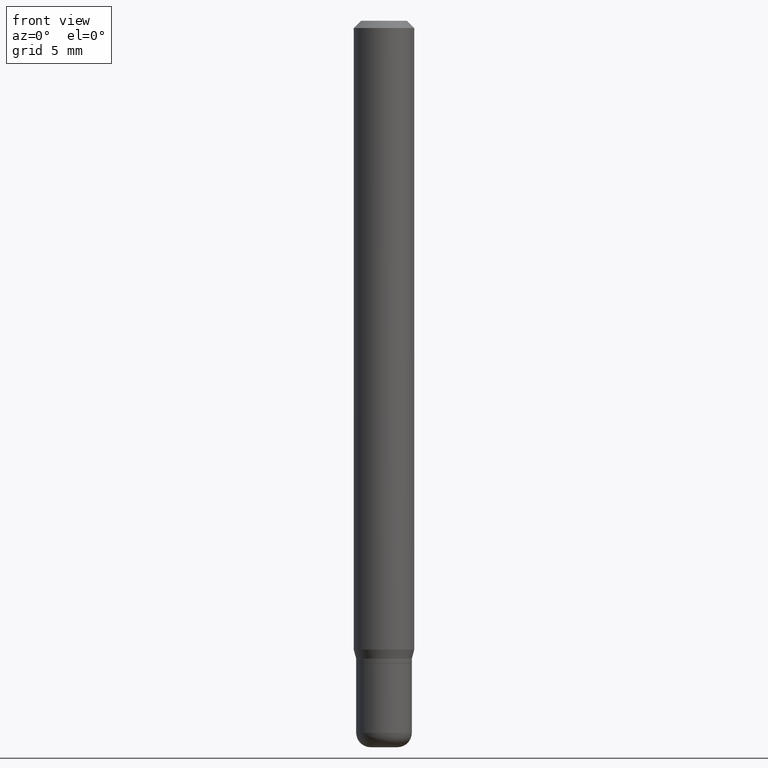
[diagram: clean part render]
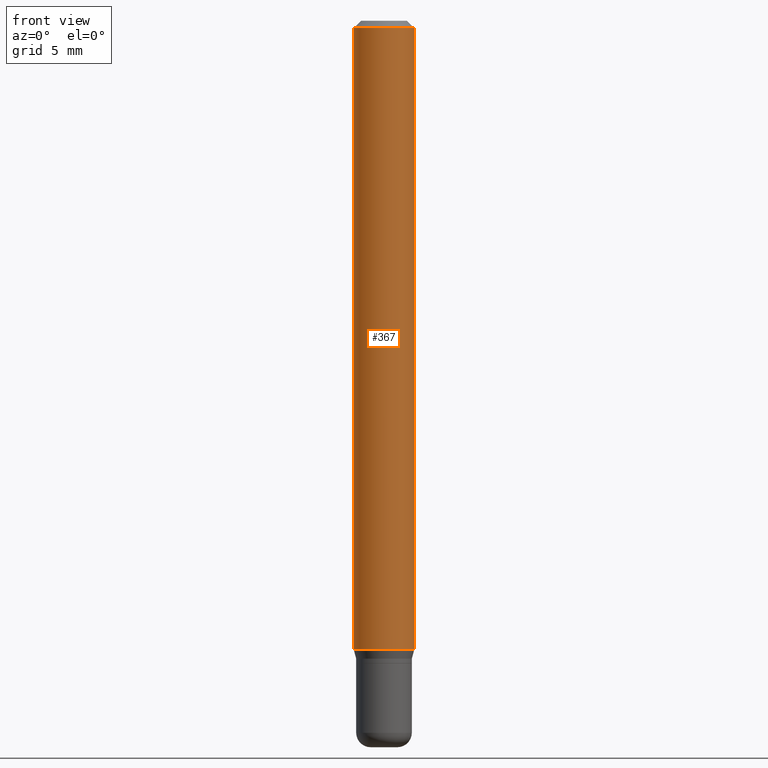
[diagram: same view with one face highlighted and labeled with its STEP entity id]
A machine part, front view. The second image highlights one B-rep face of the part: STEP entity #367.
In plain terms, the highlighted cylindrical surface (edge-blend (fillet) strip) has radius 1.5875 mm, axis along (-0, 0, 1).
Its self-contained STEP definition (entity closure, byte-faithful):
#35 = DIRECTION ( 'NONE',  ( -2.445468806185136877E-29, 3.491481338843145188E-15, 1.000000000000000000 ) ) ;
#42 = DIRECTION ( 'NONE',  ( -2.445468806185136877E-29, 3.491481338843145188E-15, 1.000000000000000000 ) ) ;
#46 = ORIENTED_EDGE ( 'NONE', *, *, #356, .T. ) ;
#56 = DIRECTION ( 'NONE',  ( -2.445468806185136597E-29, 3.491481338843145583E-15, 1.000000000000000000 ) ) ;
#106 = AXIS2_PLACEMENT_3D ( 'NONE', #319, #483, #446 ) ;
#109 = CARTESIAN_POINT ( 'NONE',  ( -0.06250000000000000000, -1.848661397443869877E-15, -0.01499999999999970281 ) ) ;
#112 = DIRECTION ( 'NONE',  ( 1.000000000000000000, -6.982962677686266711E-15, 0.000000000000000000 ) ) ;
#131 = ORIENTED_EDGE ( 'NONE', *, *, #208, .F. ) ;
#169 = ORIENTED_EDGE ( 'NONE', *, *, #346, .T. ) ;
#170 = CIRCLE ( 'NONE', #457, 0.06250000000000000000 ) ;
#208 = EDGE_CURVE ( 'NONE', #497, #445, #515, .T. ) ;
#236 = DIRECTION ( 'NONE',  ( -2.445468806185136597E-29, 3.491481338843145583E-15, 1.000000000000000000 ) ) ;
#257 = EDGE_CURVE ( 'NONE', #405, #497, #347, .T. ) ;
#274 = CARTESIAN_POINT ( 'NONE',  ( 0.06250000000000000000, -4.364351673553916694E-16, 3.047610484872459871E-30 ) ) ;
#316 = LINE ( 'NONE', #274, #488 ) ;
#319 = CARTESIAN_POINT ( 'NONE',  ( 0.000000000000000000, 0.000000000000000000, 0.000000000000000000 ) ) ;
#340 = CARTESIAN_POINT ( 'NONE',  ( 3.668203209277632395E-31, -5.237222008264614861E-17, -0.01499999999999970281 ) ) ;
#345 = CARTESIAN_POINT ( 'NONE',  ( 0.06250000000000000000, -4.888073874380378612E-16, -0.01499999999999970281 ) ) ;
#346 = EDGE_CURVE ( 'NONE', #405, #449, #170, .T. ) ;
#347 = LINE ( 'NONE', #484, #504 ) ;
#356 = EDGE_CURVE ( 'NONE', #449, #445, #316, .T. ) ;
#360 = FACE_OUTER_BOUND ( 'NONE', #365, .T. ) ;
#365 = EDGE_LOOP ( 'NONE', ( #383, #169, #46, #131 ) ) ;
#367 = ADVANCED_FACE ( 'NONE', ( #360 ), #514, .T. ) ;
#383 = ORIENTED_EDGE ( 'NONE', *, *, #257, .F. ) ;
#397 = AXIS2_PLACEMENT_3D ( 'NONE', #340, #56, #112 ) ;
#399 = CARTESIAN_POINT ( 'NONE',  ( -0.06250000000000000000, -4.089039784655156474E-15, -1.298339745962156178 ) ) ;
#401 = DIRECTION ( 'NONE',  ( 1.000000000000000000, -6.982962677686262766E-15, 0.000000000000000000 ) ) ;
#405 = VERTEX_POINT ( 'NONE', #399 ) ;
#445 = VERTEX_POINT ( 'NONE', #345 ) ;
#446 = DIRECTION ( 'NONE',  ( 1.000000000000000000, -6.982962677686266711E-15, 4.876176775795935793E-29 ) ) ;
#449 = VERTEX_POINT ( 'NONE', #500 ) ;
#457 = AXIS2_PLACEMENT_3D ( 'NONE', #513, #236, #401 ) ;
#483 = DIRECTION ( 'NONE',  ( -2.445468806185136597E-29, 3.491481338843145583E-15, 1.000000000000000000 ) ) ;
#484 = CARTESIAN_POINT ( 'NONE',  ( -0.06250000000000000000, 4.440892098500626162E-16, -3.074334431409316114E-30 ) ) ;
#488 = VECTOR ( 'NONE', #35, 39.37007874015748143 ) ;
#497 = VERTEX_POINT ( 'NONE', #109 ) ;
#500 = CARTESIAN_POINT ( 'NONE',  ( 0.06250000000000000000, -4.969564161860609971E-15, -1.298339745962156178 ) ) ;
#504 = VECTOR ( 'NONE', #42, 39.37007874015748143 ) ;
#513 = CARTESIAN_POINT ( 'NONE',  ( 3.175049348580787854E-29, -4.533128994505219090E-15, -1.298339745962156178 ) ) ;
#514 = CYLINDRICAL_SURFACE ( 'NONE', #106, 0.06250000000000000000 ) ;
#515 = CIRCLE ( 'NONE', #397, 0.06250000000000000000 ) ;